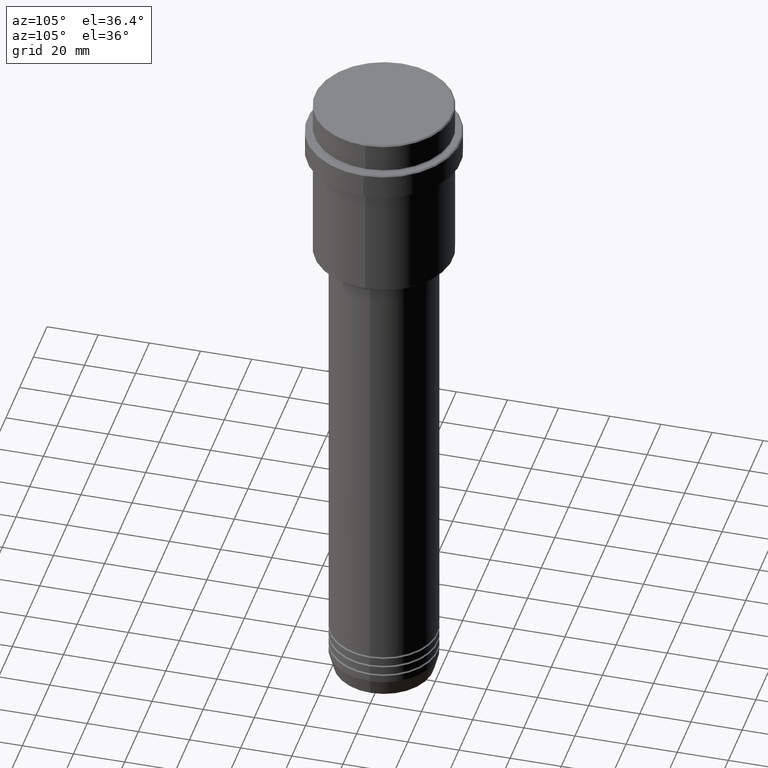
[diagram: clean part render]
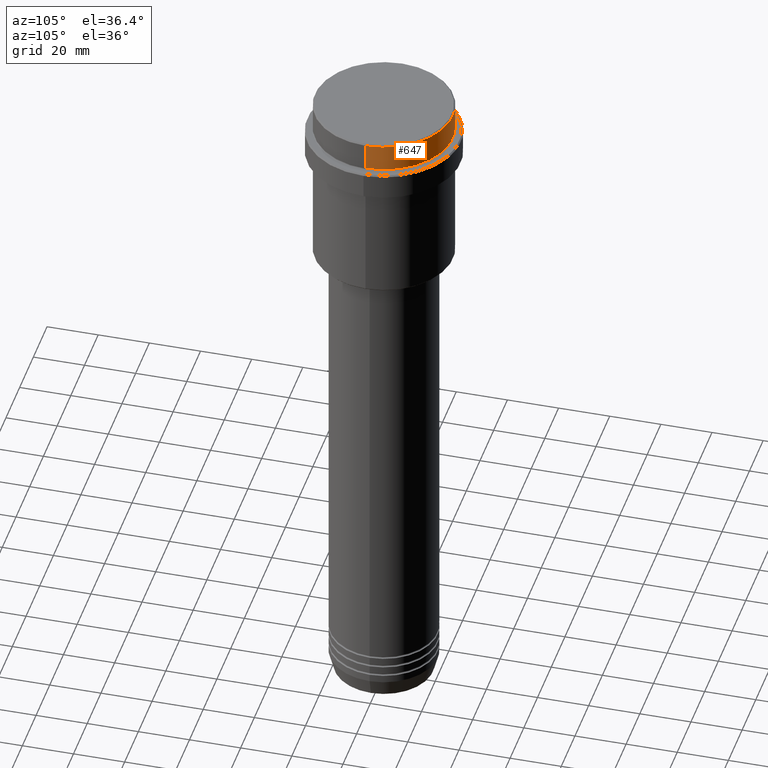
[diagram: same view with one face highlighted and labeled with its STEP entity id]
A machine part, auxiliary view. The second image highlights one B-rep face of the part: STEP entity #647.
In plain terms, the highlighted cylindrical surface (partial cylindrical patch) has radius 27 mm, axis along (-0, -0, 1).
Its self-contained STEP definition (entity closure, byte-faithful):
#3 = DIRECTION ( 'NONE',  ( -0.000000000000000000, -0.000000000000000000, 1.000000000000000000 ) ) ;
#49 = DIRECTION ( 'NONE',  ( 1.000000000000000000, 0.000000000000000000, 0.000000000000000000 ) ) ;
#78 = DIRECTION ( 'NONE',  ( -0.000000000000000000, -0.000000000000000000, 1.000000000000000000 ) ) ;
#105 = EDGE_CURVE ( 'NONE', #257, #369, #1041, .T. ) ;
#132 = DIRECTION ( 'NONE',  ( -0.000000000000000000, -0.000000000000000000, 1.000000000000000000 ) ) ;
#145 = CARTESIAN_POINT ( 'NONE',  ( 26.99999999999999645, 0.000000000000000000, 0.000000000000000000 ) ) ;
#164 = EDGE_LOOP ( 'NONE', ( #341, #826, #380, #309 ) ) ;
#199 = CARTESIAN_POINT ( 'NONE',  ( 0.000000000000000000, 0.000000000000000000, -11.00000000000000178 ) ) ;
#211 = CARTESIAN_POINT ( 'NONE',  ( -26.99999999999999645, 3.306546357697853339E-15, -11.00000000000000178 ) ) ;
#236 = VERTEX_POINT ( 'NONE', #733 ) ;
#257 = VERTEX_POINT ( 'NONE', #1159 ) ;
#260 = CARTESIAN_POINT ( 'NONE',  ( 0.000000000000000000, 0.000000000000000000, 0.000000000000000000 ) ) ;
#283 = DIRECTION ( 'NONE',  ( 1.000000000000000000, 0.000000000000000000, 0.000000000000000000 ) ) ;
#290 = EDGE_CURVE ( 'NONE', #257, #1357, #469, .T. ) ;
#302 = CARTESIAN_POINT ( 'NONE',  ( 0.000000000000000000, 0.000000000000000000, -0.5000000000000038858 ) ) ;
#309 = ORIENTED_EDGE ( 'NONE', *, *, #105, .F. ) ;
#325 = VECTOR ( 'NONE', #132, 1000.000000000000000 ) ;
#341 = ORIENTED_EDGE ( 'NONE', *, *, #290, .T. ) ;
#369 = VERTEX_POINT ( 'NONE', #1089 ) ;
#380 = ORIENTED_EDGE ( 'NONE', *, *, #794, .T. ) ;
#441 = CARTESIAN_POINT ( 'NONE',  ( -26.99999999999999645, 3.306546357697853339E-15, 0.000000000000000000 ) ) ;
#469 = CIRCLE ( 'NONE', #1117, 26.99999999999999645 ) ;
#596 = DIRECTION ( 'NONE',  ( -0.000000000000000000, -0.000000000000000000, 1.000000000000000000 ) ) ;
#644 = DIRECTION ( 'NONE',  ( 1.000000000000000000, 0.000000000000000000, 0.000000000000000000 ) ) ;
#647 = ADVANCED_FACE ( 'NONE', ( #699 ), #1136, .T. ) ;
#699 = FACE_OUTER_BOUND ( 'NONE', #164, .T. ) ;
#733 = CARTESIAN_POINT ( 'NONE',  ( -26.99999999999999645, 3.306546357697853339E-15, -0.5000000000000038858 ) ) ;
#794 = EDGE_CURVE ( 'NONE', #236, #369, #983, .T. ) ;
#826 = ORIENTED_EDGE ( 'NONE', *, *, #1358, .T. ) ;
#983 = CIRCLE ( 'NONE', #1363, 26.99999999999999645 ) ;
#991 = LINE ( 'NONE', #441, #1007 ) ;
#1007 = VECTOR ( 'NONE', #3, 1000.000000000000000 ) ;
#1041 = LINE ( 'NONE', #145, #325 ) ;
#1089 = CARTESIAN_POINT ( 'NONE',  ( 26.99999999999999645, 0.000000000000000000, -0.5000000000000038858 ) ) ;
#1117 = AXIS2_PLACEMENT_3D ( 'NONE', #199, #78, #283 ) ;
#1136 = CYLINDRICAL_SURFACE ( 'NONE', #1277, 26.99999999999999645 ) ;
#1159 = CARTESIAN_POINT ( 'NONE',  ( 26.99999999999999645, 0.000000000000000000, -11.00000000000000178 ) ) ;
#1188 = DIRECTION ( 'NONE',  ( 0.000000000000000000, 0.000000000000000000, -1.000000000000000000 ) ) ;
#1277 = AXIS2_PLACEMENT_3D ( 'NONE', #260, #596, #49 ) ;
#1357 = VERTEX_POINT ( 'NONE', #211 ) ;
#1358 = EDGE_CURVE ( 'NONE', #1357, #236, #991, .T. ) ;
#1363 = AXIS2_PLACEMENT_3D ( 'NONE', #302, #1188, #644 ) ;